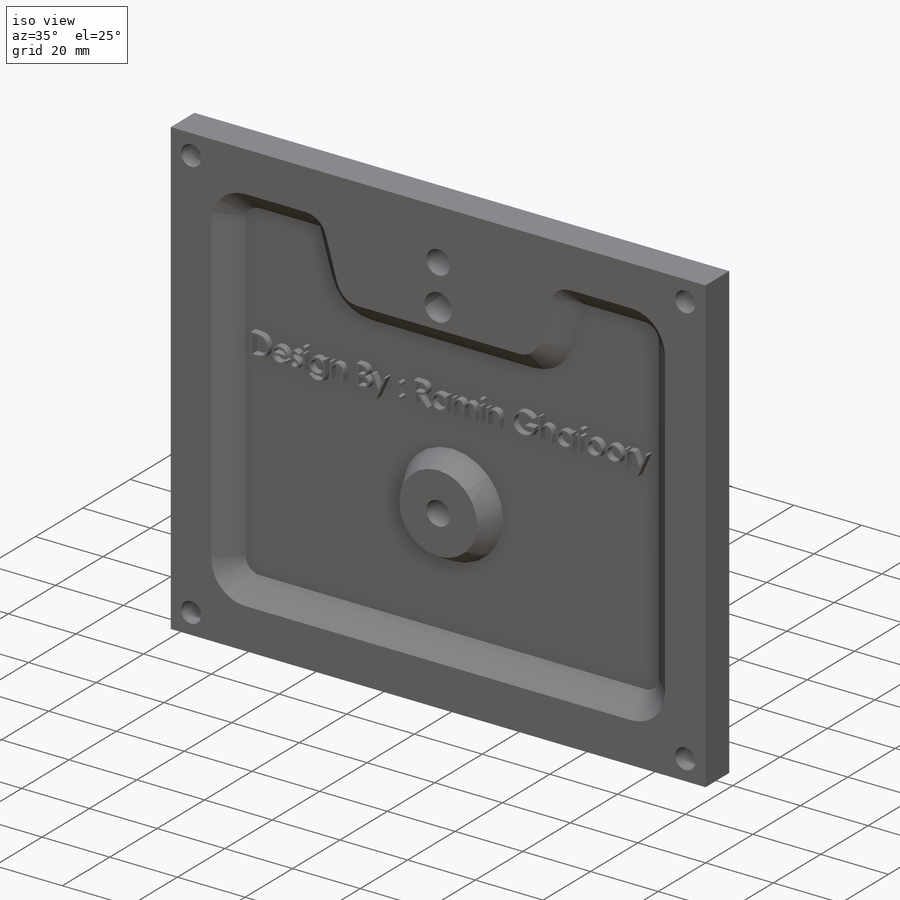
[diagram: iso view]
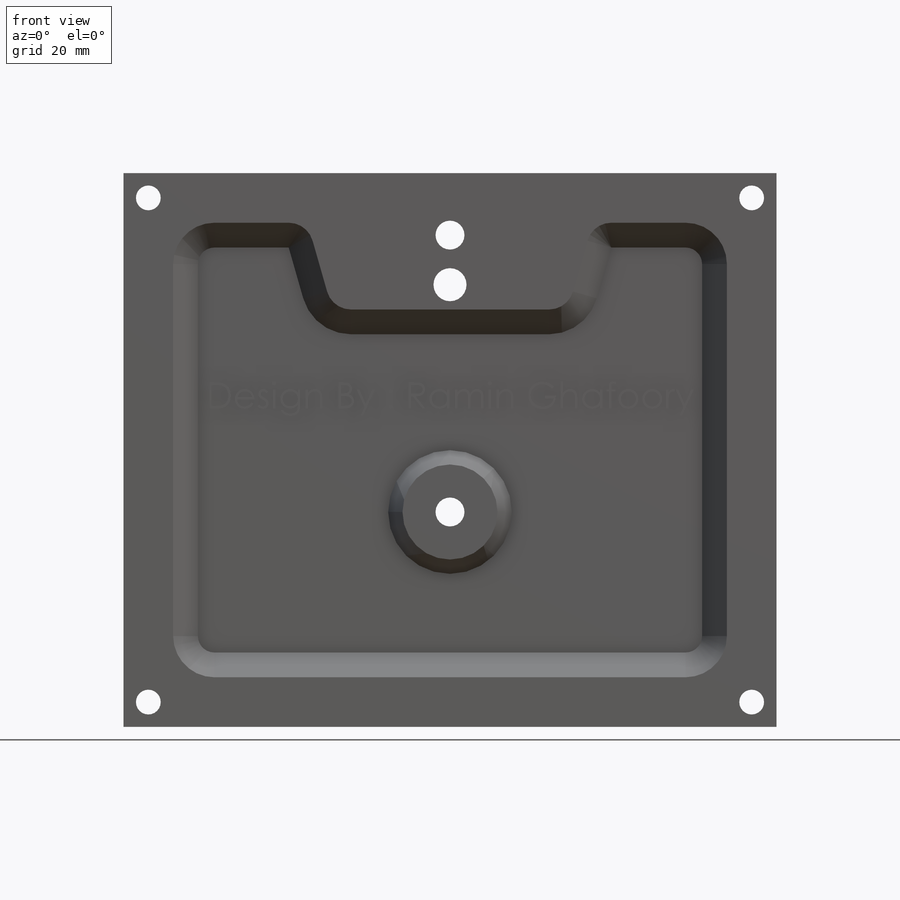
[diagram: front view]
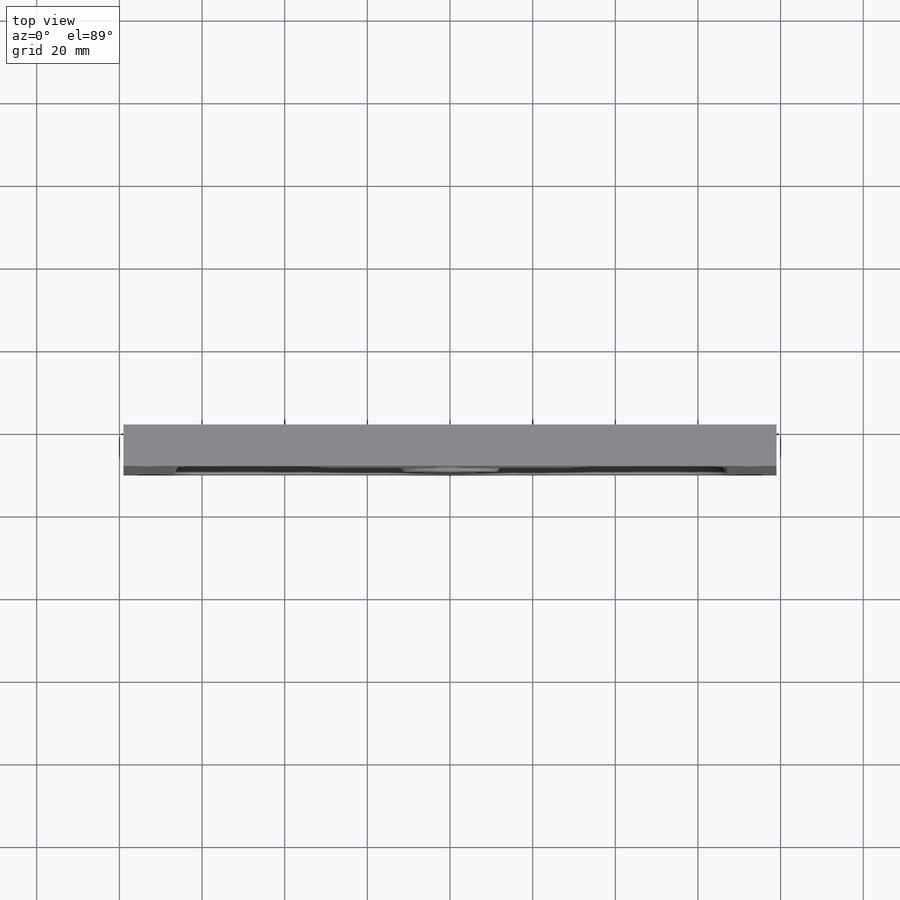
[diagram: top view]
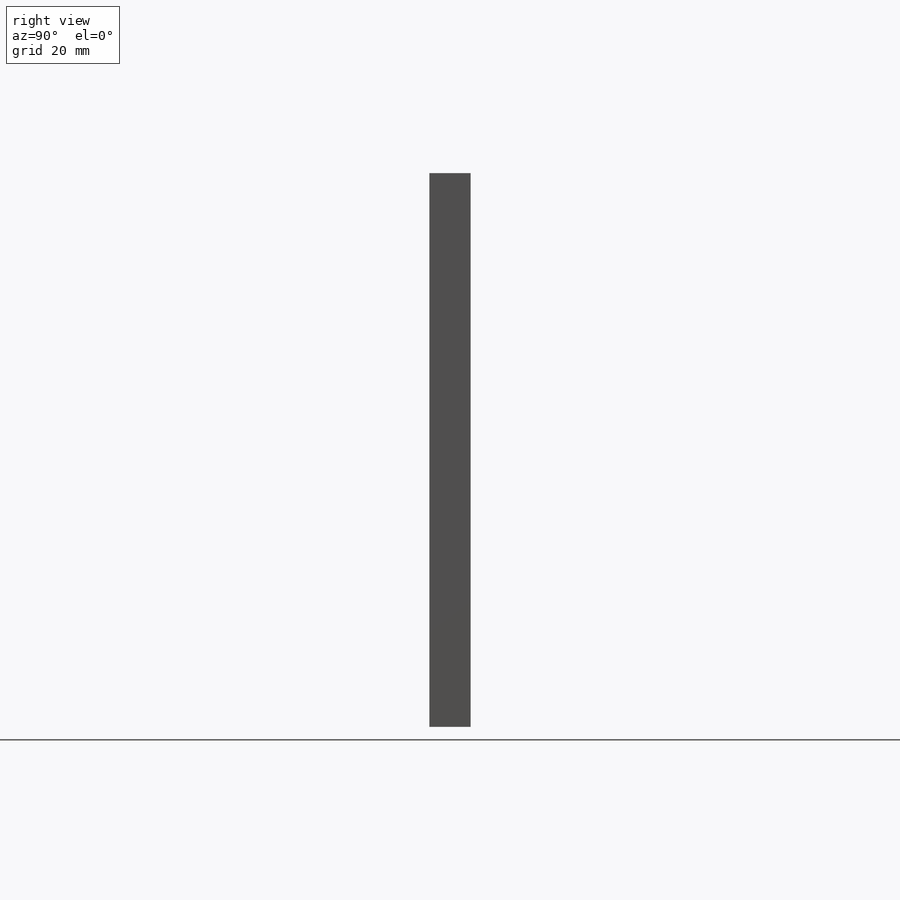
[diagram: right view]
SOLIDWORKS PART (.sldprt)
format: sldprt  version: not decoded by parser v0  size: 1,473,024 bytes
history: native  units: mm
features: sketch x7, cut_extrude x4, extrude x3, material x1, chamfer x1, pattern_linear x1 (+14 scaffold rows collapsed)
feature tree (31):
  scaffold x14  (default folders/planes/origin — collapsed)
  material  "Ductile Iron"
  sketch  "Sketch1"  dims[D1=158.0mm D2=134.0mm]
  extrude  "Boss-Extrude1"  Depth=10mm
  sketch  "Sketch2"  dims[D8=10.0mm D9=6.0mm D10=6.0mm D1=12.0mm D2=12.0mm D3=12.0mm D4=12.0mm D5=33.0mm D6=6.0mm D7=57.0mm]
  cut_extrude  "Cut-Extrude1"  Depth=6mm
  chamfer  "Chamfer1"  Distance=6mm Angle=45deg
  sketch  "Sketch3"  dims[D2=23.0mm D1=70.0mm]
  extrude  "Boss-Extrude2"  [1 undecoded]
  sketch  "Sketch4"  dims[D1=7.0mm]
  cut_extrude  "Cut-Extrude2"  [1 undecoded]
  sketch  "Sketch5"  dims[D1=7.0mm D2=8.0mm D5=6.0mm D3=12.0mm D4=15.0mm D6=6.0mm D7=6.0mm D8=6.0mm D9=6.0mm]
  cut_extrude  "Cut-Extrude3"  [1 undecoded]
  sketch  "Sketch6"  dims[D1=8.0mm]
  cut_extrude  "Cut-Extrude4"  Depth=6mm
  pattern_linear  "LPattern1"  Count1=2 Count2=2 Spacing1=146mm Spacing2=122mm
  sketch  "Sketch7"  dims[D1=10.0mm]
  extrude  "Boss-Extrude3"  Depth=2mm
decode coverage: 13 of 16 modeling features carry decoded parameters
note: 3 parameter values undecoded
summary: no parameter record found for 3 features
note: suppression state not decoded; provenance and decode notes live in map.json
